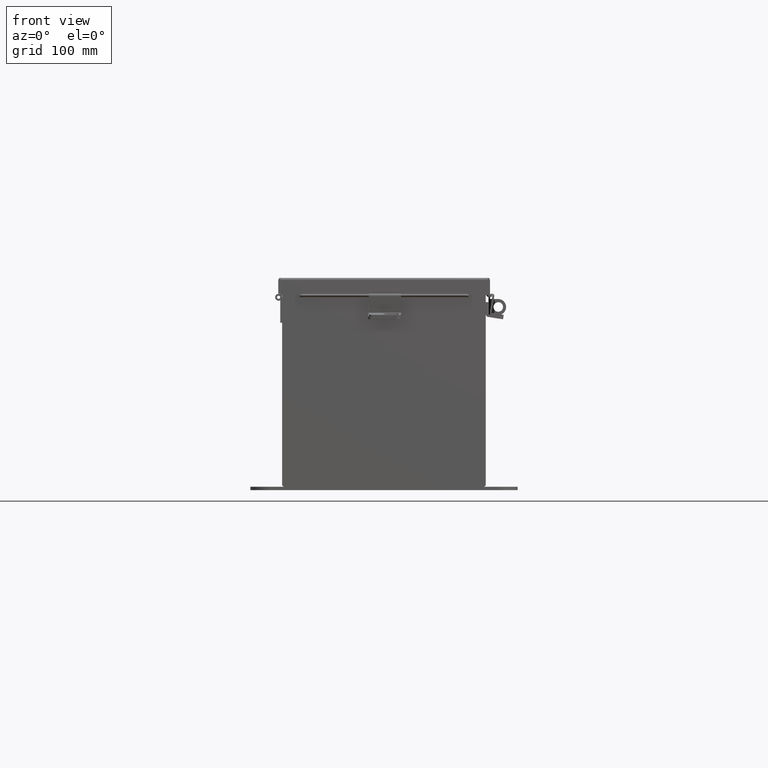
[diagram: clean part render]
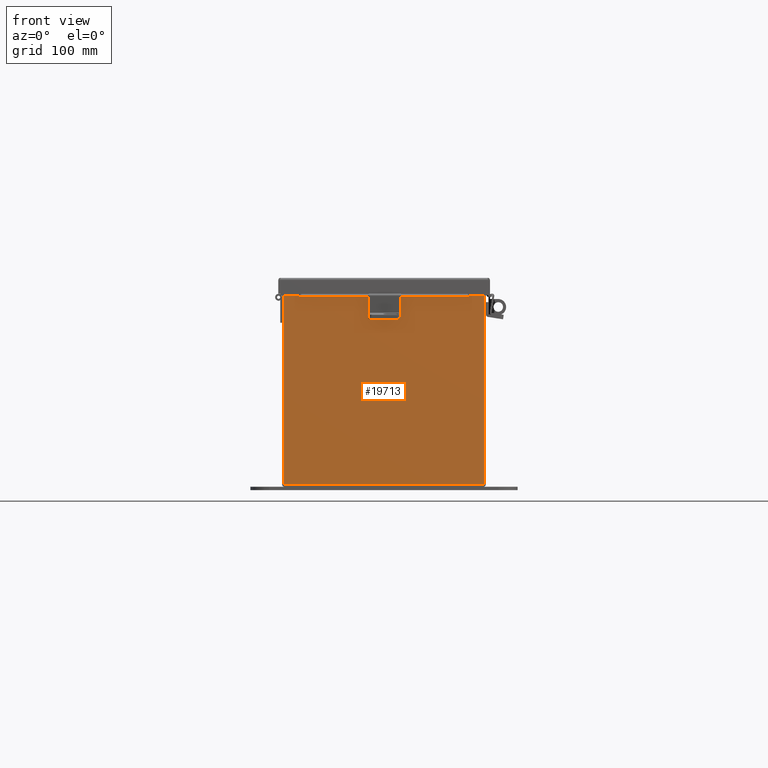
[diagram: same view with one face highlighted and labeled with its STEP entity id]
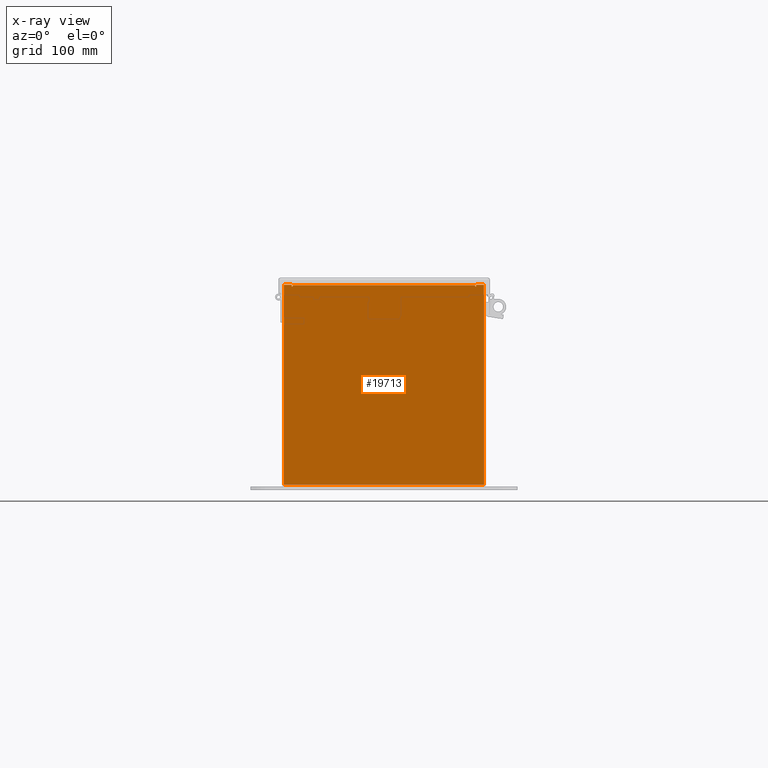
[diagram: x-ray of the same camera — body ghosted, the highlighted face saturated]
A machine part, front view. The second image highlights one B-rep face of the part: STEP entity #19713.
The next image is the same camera in x-ray: the body ghosted, the highlighted face saturated — about 0% of this face is hidden behind the body in this view.
In plain terms, the highlighted planar face has unit normal (-0, 1, -0).
Its self-contained STEP definition (entity closure, byte-faithful):
#543 = VERTEX_POINT ( 'NONE', #18280 ) ;
#580 = LINE ( 'NONE', #6415, #18664 ) ;
#655 = EDGE_CURVE ( 'NONE', #543, #17137, #14403, .T. ) ;
#924 = VECTOR ( 'NONE', #18652, 39.37007874015748100 ) ;
#929 = VECTOR ( 'NONE', #16981, 39.37007874015748100 ) ;
#1208 = DIRECTION ( 'NONE',  ( 0.0000000000000000000, 0.0000000000000000000, 1.000000000000000000 ) ) ;
#1608 = DIRECTION ( 'NONE',  ( 0.0000000000000000000, 0.0000000000000000000, 1.000000000000000000 ) ) ;
#1632 = EDGE_CURVE ( 'NONE', #16133, #14337, #19581, .T. ) ;
#1776 = EDGE_LOOP ( 'NONE', ( #5676, #3063, #12227, #11172, #21311, #15378, #21772, #11482, #9421, #6763, #6414, #18618 ) ) ;
#2013 = VERTEX_POINT ( 'NONE', #8569 ) ;
#2206 = DIRECTION ( 'NONE',  ( 5.526334185345597900E-031, 1.000000000000000000, -0.0000000000000000000 ) ) ;
#2790 = CARTESIAN_POINT ( 'NONE',  ( -3.619650000000000500, 0.0000000000000000000, 3.925299999999999100 ) ) ;
#3063 = ORIENTED_EDGE ( 'NONE', *, *, #1632, .F. ) ;
#3485 = VERTEX_POINT ( 'NONE', #18746 ) ;
#3695 = AXIS2_PLACEMENT_3D ( 'NONE', #14929, #18508, #8051 ) ;
#3811 = EDGE_CURVE ( 'NONE', #14337, #17137, #6417, .T. ) ;
#4618 = AXIS2_PLACEMENT_3D ( 'NONE', #20030, #9547, #21822 ) ;
#4652 = CARTESIAN_POINT ( 'NONE',  ( -3.582300000000000000, 0.0000000000000000000, 3.912299999999999200 ) ) ;
#4952 = EDGE_CURVE ( 'NONE', #9485, #16764, #14867, .T. ) ;
#5130 = CARTESIAN_POINT ( 'NONE',  ( -3.925300000000000500, 0.0000000000000000000, -3.925299999999999600 ) ) ;
#5676 = ORIENTED_EDGE ( 'NONE', *, *, #3811, .F. ) ;
#5731 = EDGE_CURVE ( 'NONE', #9485, #3485, #21600, .T. ) ;
#5870 = VECTOR ( 'NONE', #14044, 39.37007874015748100 ) ;
#6279 = PLANE ( 'NONE',  #3695 ) ;
#6414 = ORIENTED_EDGE ( 'NONE', *, *, #7868, .T. ) ;
#6415 = CARTESIAN_POINT ( 'NONE',  ( 3.582299999999999200, 0.0000000000000000000, 4.917326388595674200E-015 ) ) ;
#6417 = LINE ( 'NONE', #6893, #14633 ) ;
#6432 = LINE ( 'NONE', #19332, #5870 ) ;
#6616 = DIRECTION ( 'NONE',  ( 1.000000000000000000, 5.526334185345597900E-031, 0.0000000000000000000 ) ) ;
#6763 = ORIENTED_EDGE ( 'NONE', *, *, #14728, .T. ) ;
#6893 = CARTESIAN_POINT ( 'NONE',  ( -3.619650000000000500, 0.0000000000000000000, 0.0000000000000000000 ) ) ;
#7076 = CARTESIAN_POINT ( 'NONE',  ( 3.925299999999999100, 0.0000000000000000000, 3.925299999999999100 ) ) ;
#7868 = EDGE_CURVE ( 'NONE', #21927, #543, #13286, .T. ) ;
#8051 = DIRECTION ( 'NONE',  ( 0.0000000000000000000, 0.0000000000000000000, -1.000000000000000000 ) ) ;
#8288 = EDGE_CURVE ( 'NONE', #11667, #21381, #10272, .T. ) ;
#8322 = AXIS2_PLACEMENT_3D ( 'NONE', #12691, #2206, #14470 ) ;
#8400 = CARTESIAN_POINT ( 'NONE',  ( -3.925300000000000500, 0.0000000000000000000, 3.925300000000000500 ) ) ;
#8433 = CARTESIAN_POINT ( 'NONE',  ( -3.582299999999995200, 0.0000000000000000000, 3.874949999999999200 ) ) ;
#8569 = CARTESIAN_POINT ( 'NONE',  ( 3.925299999999999100, 0.0000000000000000000, -3.925299999999994700 ) ) ;
#8589 = CARTESIAN_POINT ( 'NONE',  ( -3.582300000000000000, 0.0000000000000000000, 3.912299999999999200 ) ) ;
#8662 = DIRECTION ( 'NONE',  ( 0.0000000000000000000, 0.0000000000000000000, 1.000000000000000000 ) ) ;
#9122 = DIRECTION ( 'NONE',  ( -2.170286390199978800E-014, -8.874685183736382800E-031, -1.000000000000000000 ) ) ;
#9421 = ORIENTED_EDGE ( 'NONE', *, *, #18069, .T. ) ;
#9485 = VERTEX_POINT ( 'NONE', #9815 ) ;
#9547 = DIRECTION ( 'NONE',  ( 5.526334185345597900E-031, 1.000000000000000000, -0.0000000000000000000 ) ) ;
#9815 = CARTESIAN_POINT ( 'NONE',  ( 3.619650000000000500, 0.0000000000000000000, 3.925300000000000500 ) ) ;
#10225 = VECTOR ( 'NONE', #6616, 39.37007874015748100 ) ;
#10272 = LINE ( 'NONE', #4652, #924 ) ;
#10452 = EDGE_CURVE ( 'NONE', #11667, #16133, #18957, .T. ) ;
#10517 = EDGE_CURVE ( 'NONE', #3485, #16316, #12641, .T. ) ;
#11172 = ORIENTED_EDGE ( 'NONE', *, *, #8288, .T. ) ;
#11482 = ORIENTED_EDGE ( 'NONE', *, *, #4952, .T. ) ;
#11667 = VERTEX_POINT ( 'NONE', #8589 ) ;
#12088 = CARTESIAN_POINT ( 'NONE',  ( -3.925300000000000500, 0.0000000000000000000, 3.925300000000000500 ) ) ;
#12227 = ORIENTED_EDGE ( 'NONE', *, *, #10452, .F. ) ;
#12641 = CIRCLE ( 'NONE', #4618, 0.01867500000000003900 ) ;
#12691 = CARTESIAN_POINT ( 'NONE',  ( -3.600974999999995200, 0.0000000000000000000, 3.874949999999999200 ) ) ;
#13286 = LINE ( 'NONE', #12088, #13829 ) ;
#13829 = VECTOR ( 'NONE', #1608, 39.37007874015748100 ) ;
#13858 = VECTOR ( 'NONE', #18590, 39.37007874015748100 ) ;
#14044 = DIRECTION ( 'NONE',  ( -1.000000000000000000, -5.526334185345597900E-031, 0.0000000000000000000 ) ) ;
#14337 = VERTEX_POINT ( 'NONE', #21445 ) ;
#14403 = LINE ( 'NONE', #22187, #13858 ) ;
#14470 = DIRECTION ( 'NONE',  ( 0.0000000000000000000, 0.0000000000000000000, -1.000000000000000000 ) ) ;
#14582 = CARTESIAN_POINT ( 'NONE',  ( -3.582300000000000000, 0.0000000000000000000, 0.0000000000000000000 ) ) ;
#14633 = VECTOR ( 'NONE', #8662, 39.37007874015748100 ) ;
#14728 = EDGE_CURVE ( 'NONE', #2013, #21927, #6432, .T. ) ;
#14867 = LINE ( 'NONE', #8400, #10225 ) ;
#14916 = LINE ( 'NONE', #15314, #929 ) ;
#14929 = CARTESIAN_POINT ( 'NONE',  ( 0.0000000000000000000, 0.0000000000000000000, 0.0000000000000000000 ) ) ;
#15314 = CARTESIAN_POINT ( 'NONE',  ( 3.925299999999999100, 0.0000000000000000000, 3.925299999999999100 ) ) ;
#15378 = ORIENTED_EDGE ( 'NONE', *, *, #10517, .F. ) ;
#15497 = CARTESIAN_POINT ( 'NONE',  ( 3.582299999999999200, 0.0000000000000000000, 3.912299999999999200 ) ) ;
#15669 = FACE_OUTER_BOUND ( 'NONE', #1776, .T. ) ;
#16133 = VERTEX_POINT ( 'NONE', #8433 ) ;
#16316 = VERTEX_POINT ( 'NONE', #18040 ) ;
#16330 = DIRECTION ( 'NONE',  ( 0.0000000000000000000, 0.0000000000000000000, -1.000000000000000000 ) ) ;
#16764 = VERTEX_POINT ( 'NONE', #7076 ) ;
#16892 = VECTOR ( 'NONE', #9122, 39.37007874015748100 ) ;
#16981 = DIRECTION ( 'NONE',  ( 0.0000000000000000000, 0.0000000000000000000, -1.000000000000000000 ) ) ;
#17137 = VERTEX_POINT ( 'NONE', #2790 ) ;
#17837 = CARTESIAN_POINT ( 'NONE',  ( 3.619649999999915200, 0.0000000000000000000, -7.375989582893510800E-014 ) ) ;
#18040 = CARTESIAN_POINT ( 'NONE',  ( 3.582300000000004000, 0.0000000000000000000, 3.874949999999999200 ) ) ;
#18069 = EDGE_CURVE ( 'NONE', #16764, #2013, #14916, .T. ) ;
#18280 = CARTESIAN_POINT ( 'NONE',  ( -3.925300000000000500, 0.0000000000000000000, 3.925300000000000500 ) ) ;
#18401 = VECTOR ( 'NONE', #16330, 39.37007874015748100 ) ;
#18508 = DIRECTION ( 'NONE',  ( -5.526334185345597900E-031, -1.000000000000000000, -0.0000000000000000000 ) ) ;
#18590 = DIRECTION ( 'NONE',  ( 1.000000000000000000, 5.526334185345597900E-031, 0.0000000000000000000 ) ) ;
#18618 = ORIENTED_EDGE ( 'NONE', *, *, #655, .T. ) ;
#18652 = DIRECTION ( 'NONE',  ( 1.000000000000000000, 5.526334185345597900E-031, -0.0000000000000000000 ) ) ;
#18664 = VECTOR ( 'NONE', #1208, 39.37007874015748100 ) ;
#18746 = CARTESIAN_POINT ( 'NONE',  ( 3.619650000000004000, 0.0000000000000000000, 3.874949999999999200 ) ) ;
#18957 = LINE ( 'NONE', #14582, #18401 ) ;
#19332 = CARTESIAN_POINT ( 'NONE',  ( -3.925300000000000500, 0.0000000000000000000, -3.925299999999999600 ) ) ;
#19581 = CIRCLE ( 'NONE', #8322, 0.01867500000000003900 ) ;
#19713 = ADVANCED_FACE ( 'NONE', ( #15669 ), #6279, .F. ) ;
#19755 = EDGE_CURVE ( 'NONE', #16316, #21381, #580, .T. ) ;
#20030 = CARTESIAN_POINT ( 'NONE',  ( 3.600975000000004000, 0.0000000000000000000, 3.874949999999999200 ) ) ;
#21311 = ORIENTED_EDGE ( 'NONE', *, *, #19755, .F. ) ;
#21381 = VERTEX_POINT ( 'NONE', #15497 ) ;
#21445 = CARTESIAN_POINT ( 'NONE',  ( -3.619649999999995100, 0.0000000000000000000, 3.874949999999999200 ) ) ;
#21600 = LINE ( 'NONE', #17837, #16892 ) ;
#21772 = ORIENTED_EDGE ( 'NONE', *, *, #5731, .F. ) ;
#21822 = DIRECTION ( 'NONE',  ( 0.0000000000000000000, 0.0000000000000000000, -1.000000000000000000 ) ) ;
#21927 = VERTEX_POINT ( 'NONE', #5130 ) ;
#22187 = CARTESIAN_POINT ( 'NONE',  ( -3.925300000000000500, 0.0000000000000000000, 3.925300000000000500 ) ) ;